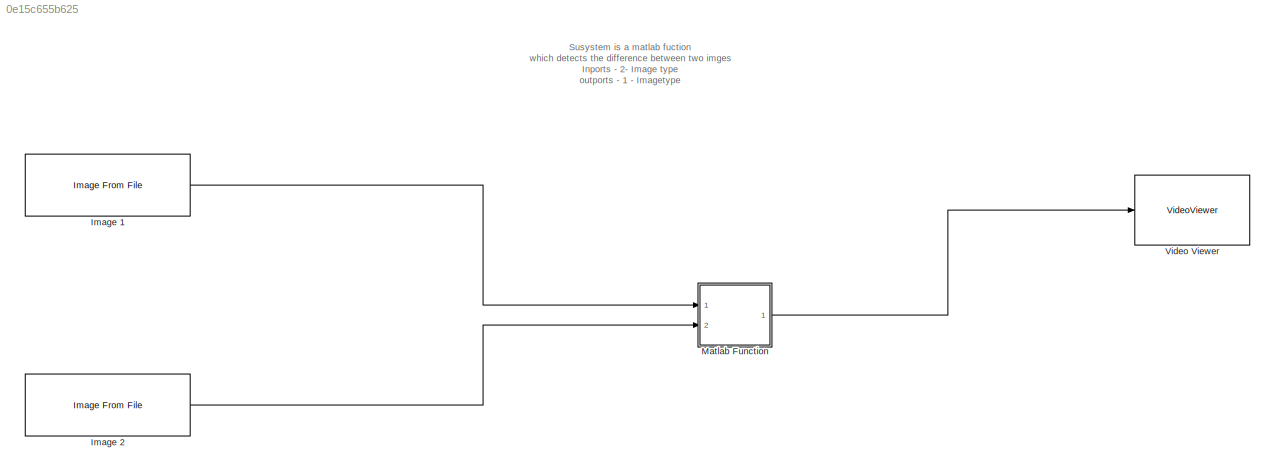
MODEL slx_0e15c655b625
KIND model
CONFIG AbsTol = auto
CONFIG EnableMultiTasking = off
CONFIG FixedStep = auto
CONFIG MaxStep = auto
CONFIG MinStep = auto
CONFIG RelTol = 1e-3
CONFIG SampleTimeConstraint = Unconstrained
CONFIG SolverName = VariableStepAuto
CONFIG StartTime = 0.0
CONFIG StopTime = 2
BLOCK [Reference] Image 1  REF=visionsources/Image From File
  Ports = [0, 1]
  SourceBlock = visionsources/Image From File
  SourceProductBaseCode = VP
  SourceType = Image From File
  Tag = vipblks_nd
BLOCK [Reference] Image 2  REF=visionsources/Image From File
  Ports = [0, 1]
  SourceBlock = visionsources/Image From File
  SourceProductBaseCode = VP
  SourceType = Image From File
  Tag = vipblks_nd
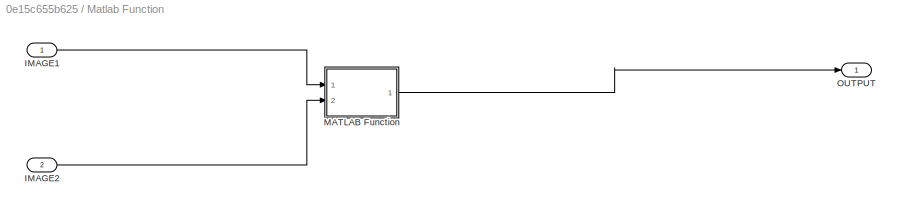
BLOCK [SubSystem] Matlab Function
  Ports = [2, 1]
  RequestExecContextInheritance = off
BLOCK [Inport] Matlab Function/IMAGE1
BLOCK [Inport] Matlab Function/IMAGE2
  Port = 2
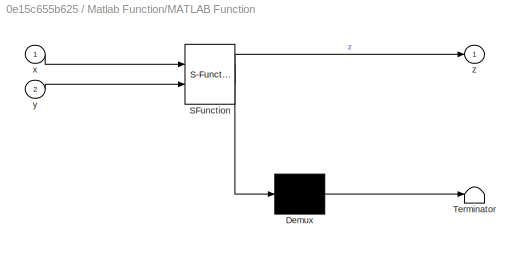
BLOCK [SubSystem] Matlab Function/MATLAB Function
  ErrorFcn = Stateflow.Translate.translate
  PermitHierarchicalResolution = ExplicitOnly
  Ports = [2, 1]
  RequestExecContextInheritance = off
  SFBlockType = MATLAB Function
  TreatAsAtomicUnit = on
BLOCK [Demux] Matlab Function/MATLAB Function/ Demux 
  Outputs = 1
  Ports = [1, 1]
BLOCK [S-Function] Matlab Function/MATLAB Function/ SFunction 
  EnableBusSupport = on
  FunctionName = sf_sfun
  PortCounts = [2 2]
  Ports = [2, 2]
  SFcnIsStateOwnerBlock = off
  SFunctionDeploymentMode = off
  Tag = Stateflow S-Function 1
BLOCK [Terminator] Matlab Function/MATLAB Function/ Terminator 
BLOCK [Inport] Matlab Function/MATLAB Function/x
BLOCK [Inport] Matlab Function/MATLAB Function/y
  Port = 2
BLOCK [Outport] Matlab Function/MATLAB Function/z
BLOCK [Outport] Matlab Function/OUTPUT
BLOCK [VideoViewer] Video Viewer
  FigPos = [1376 392 357 191]
  Ports = [1]
  ScopeSpecificationString = vipscopes.VideoViewerScopeCfg('CurrentConfiguration', extmgr.ConfigurationSet(extmgr.Configuration('Core','General UI',true),extmgr.Configuration('Core','Source UI',true),extmgr.Configuration('Sources','WiredSimulink',true),extmgr.Configuration('Visuals','Video',true),extmgr.Configuration('Tools','Image Navigation Tools',true),extmgr.Configuration('Tools','Image Tool',true),extmgr.Configuration('T...<+102ch>
ANNOTATION (root): Susystem is a matlab fuction which detects the difference between two imges Inports - 2- Image type outports - 1 - Imagetype
LINE Image 1:1 -> Matlab Function:1
LINE Image 2:1 -> Matlab Function:2
LINE Matlab Function/IMAGE1:1 -> Matlab Function/MATLAB Function:1
LINE Matlab Function/IMAGE2:1 -> Matlab Function/MATLAB Function:2
LINE Matlab Function/MATLAB Function:1 -> Matlab Function/OUTPUT:1
LINE Matlab Function:1 -> Video Viewer:1
CHART Matlab Function/MATLAB Function states=1 transitions=1
  STATE_LABEL 'eML_blk_kernel()'
  STATE_LABEL "SCRIPT:\nfunction z = fcn(x, y)\n\n%  clc\n% clear\n% close all\n% warning off;\n%  x=imread('<userpath>\\Downloads\\red2.jpg');\n%  y=imread('<userpath>\\Downloads\\rect2.jpg');\ng=size(x);\ny=imresize(y,[g(1),g(2)]);\nfigure;\nz=x-y;\npause(5);"
CHART  states=0 transitions=0
